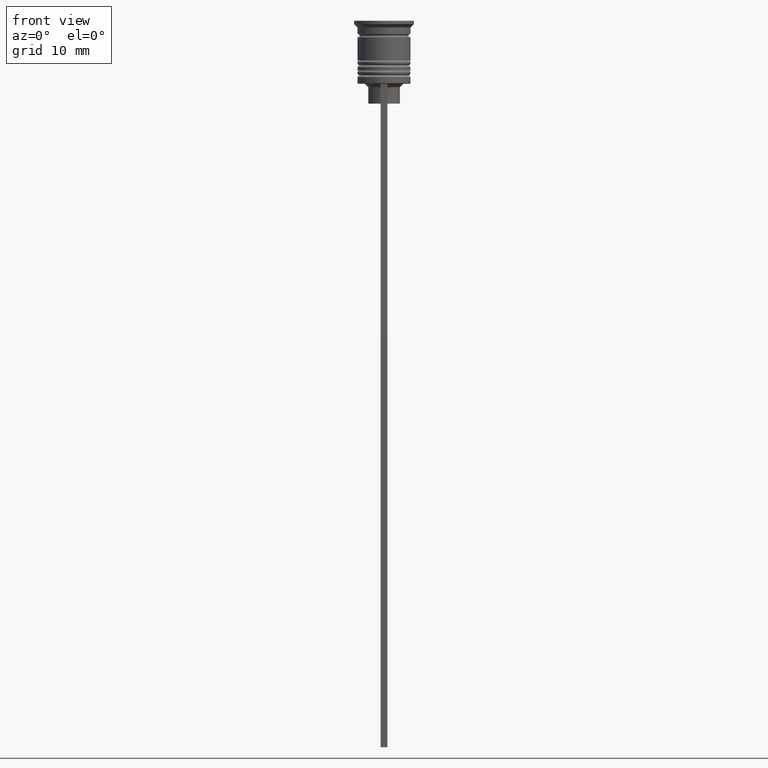
[diagram: clean part render]
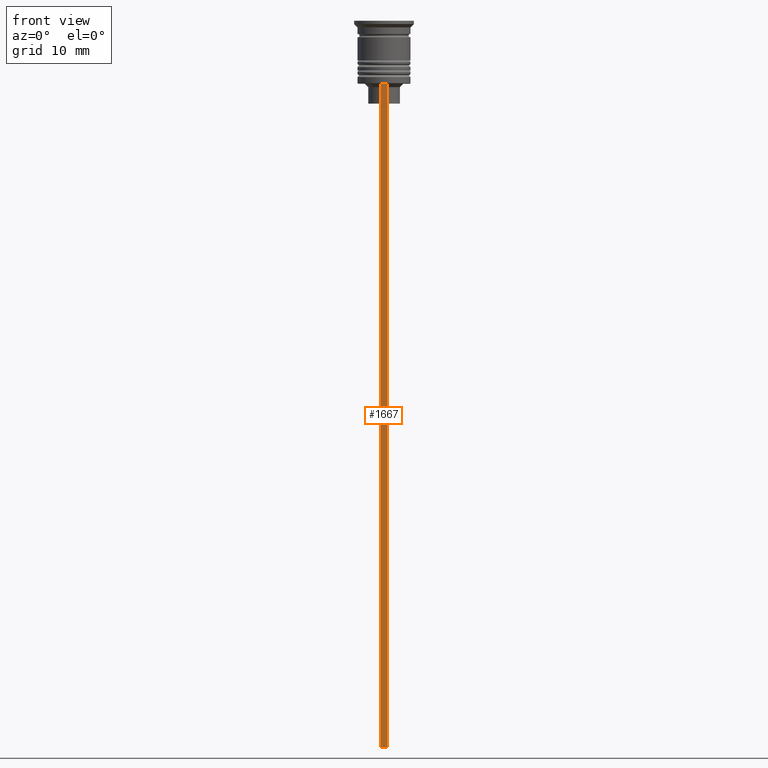
[diagram: same view with one face highlighted and labeled with its STEP entity id]
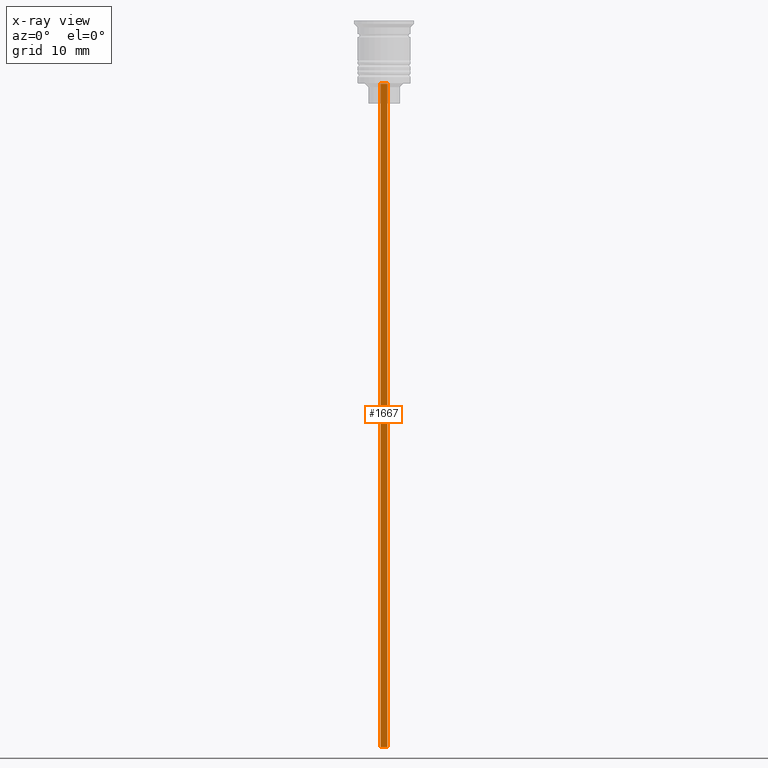
[diagram: x-ray of the same camera — body ghosted, the highlighted face saturated]
A machine part, front view. The second image highlights one B-rep face of the part: STEP entity #1667.
The next image is the same camera in x-ray: the body ghosted, the highlighted face saturated — about 0% of this face is hidden behind the body in this view.
In plain terms, the highlighted planar face has unit normal (0, -1, -0).
Its self-contained STEP definition (entity closure, byte-faithful):
#16 = AXIS2_PLACEMENT_3D ( 'NONE', #1810, #2446, #659 ) ;
#113 = DIRECTION ( 'NONE',  ( -1.000000000000000000, 0.000000000000000000, 0.000000000000000000 ) ) ;
#120 = DIRECTION ( 'NONE',  ( 0.000000000000000000, 0.000000000000000000, -1.000000000000000000 ) ) ;
#311 = CARTESIAN_POINT ( 'NONE',  ( 0.5000000000000000000, -4.000000000000000000, -1.437742251701450202 ) ) ;
#351 = EDGE_CURVE ( 'NONE', #1655, #662, #1873, .T. ) ;
#416 = LINE ( 'NONE', #1358, #1154 ) ;
#441 = EDGE_CURVE ( 'NONE', #713, #662, #416, .T. ) ;
#488 = VECTOR ( 'NONE', #113, 1000.000000000000000 ) ;
#496 = EDGE_CURVE ( 'NONE', #713, #597, #1548, .T. ) ;
#564 = CARTESIAN_POINT ( 'NONE',  ( -0.5000000000000000000, -4.000000000000000000, -9.500000000000000000 ) ) ;
#597 = VERTEX_POINT ( 'NONE', #1994 ) ;
#659 = DIRECTION ( 'NONE',  ( 0.000000000000000000, 0.000000000000000000, -1.000000000000000000 ) ) ;
#662 = VERTEX_POINT ( 'NONE', #2312 ) ;
#713 = VERTEX_POINT ( 'NONE', #564 ) ;
#729 = ORIENTED_EDGE ( 'NONE', *, *, #441, .T. ) ;
#848 = ORIENTED_EDGE ( 'NONE', *, *, #496, .F. ) ;
#854 = CARTESIAN_POINT ( 'NONE',  ( 0.5000000000000000000, -4.000000000000000000, -109.5000000000000000 ) ) ;
#905 = ORIENTED_EDGE ( 'NONE', *, *, #351, .F. ) ;
#1026 = VECTOR ( 'NONE', #120, 1000.000000000000000 ) ;
#1061 = VECTOR ( 'NONE', #1961, 1000.000000000000000 ) ;
#1154 = VECTOR ( 'NONE', #2537, 1000.000000000000000 ) ;
#1223 = FACE_OUTER_BOUND ( 'NONE', #2367, .T. ) ;
#1358 = CARTESIAN_POINT ( 'NONE',  ( -0.5000000000000000000, -4.000000000000000000, -1.437742251701450202 ) ) ;
#1435 = EDGE_CURVE ( 'NONE', #597, #1655, #1449, .T. ) ;
#1449 = LINE ( 'NONE', #311, #1026 ) ;
#1548 = LINE ( 'NONE', #2154, #1061 ) ;
#1608 = PLANE ( 'NONE',  #16 ) ;
#1655 = VERTEX_POINT ( 'NONE', #854 ) ;
#1667 = ADVANCED_FACE ( 'NONE', ( #1223 ), #1608, .T. ) ;
#1713 = ORIENTED_EDGE ( 'NONE', *, *, #1435, .F. ) ;
#1810 = CARTESIAN_POINT ( 'NONE',  ( 0.5000000000000000000, -4.000000000000000000, -1.437742251701450202 ) ) ;
#1861 = CARTESIAN_POINT ( 'NONE',  ( 0.5000000000000000000, -4.000000000000000000, -109.5000000000000000 ) ) ;
#1873 = LINE ( 'NONE', #1861, #488 ) ;
#1961 = DIRECTION ( 'NONE',  ( 1.000000000000000000, 0.000000000000000000, 0.000000000000000000 ) ) ;
#1994 = CARTESIAN_POINT ( 'NONE',  ( 0.5000000000000000000, -4.000000000000000000, -9.500000000000000000 ) ) ;
#2154 = CARTESIAN_POINT ( 'NONE',  ( 0.5000000000000000000, -4.000000000000000000, -9.500000000000000000 ) ) ;
#2312 = CARTESIAN_POINT ( 'NONE',  ( -0.5000000000000000000, -4.000000000000000000, -109.5000000000000000 ) ) ;
#2367 = EDGE_LOOP ( 'NONE', ( #848, #729, #905, #1713 ) ) ;
#2446 = DIRECTION ( 'NONE',  ( 0.000000000000000000, -1.000000000000000000, -0.000000000000000000 ) ) ;
#2537 = DIRECTION ( 'NONE',  ( 0.000000000000000000, 0.000000000000000000, -1.000000000000000000 ) ) ;